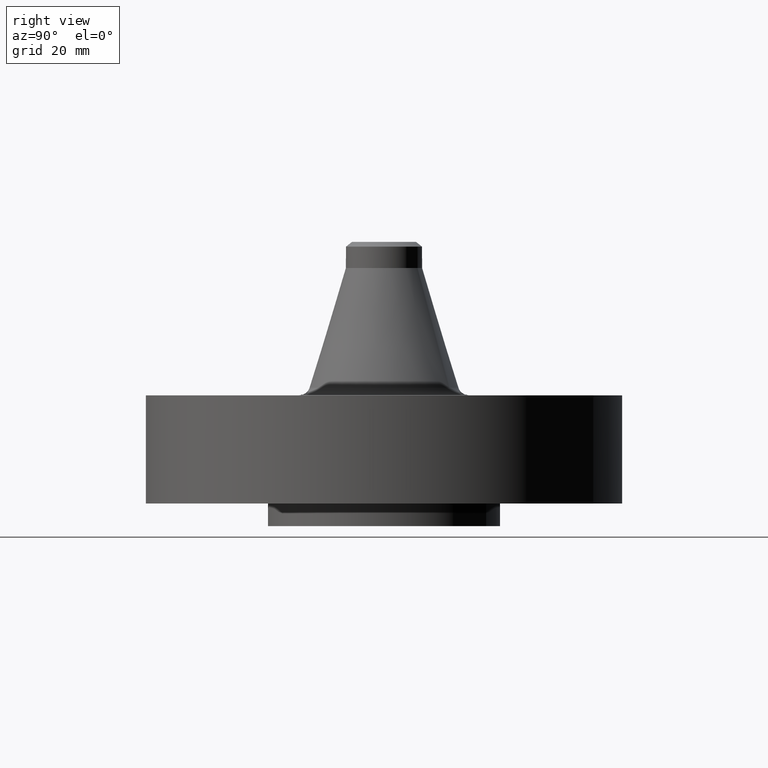
[diagram: clean part render]
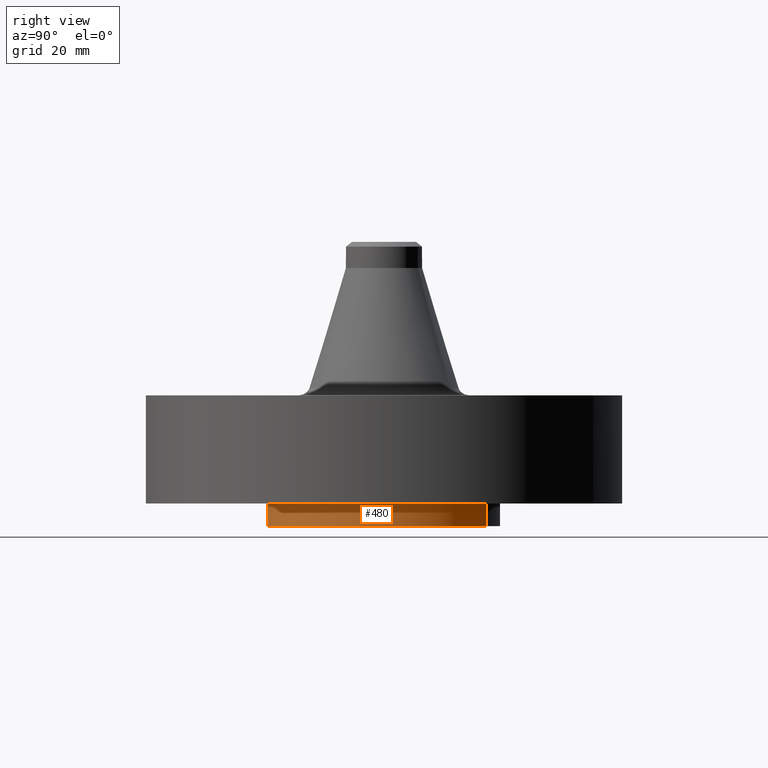
[diagram: same view with one face highlighted and labeled with its STEP entity id]
A machine part, right view. The second image highlights one B-rep face of the part: STEP entity #480.
In plain terms, the highlighted cylindrical surface (partial cylindrical patch) has radius 32.5501 mm, axis along (0, 0, -1).
Its self-contained STEP definition (entity closure, byte-faithful):
#427=AXIS2_PLACEMENT_3D('Cylinder Axis2P3D',#424,#425,#426) ;
#466=AXIS2_PLACEMENT_3D('Circle Axis2P3D',#464,#465,$) ;
#471=AXIS2_PLACEMENT_3D('Circle Axis2P3D',#469,#470,$) ;
#424=CARTESIAN_POINT('Axis2P3D Location',(0.,0.,1.31500000001)) ;
#433=CARTESIAN_POINT('Vertex',(-0.614383827724,-1.12462205307,-0.250000000001)) ;
#435=CARTESIAN_POINT('Vertex',(0.614383827724,1.12462205307,-0.250000000001)) ;
#438=CARTESIAN_POINT('Line Origine',(-0.614383827724,-1.12462205307,-0.125000000001)) ;
#442=CARTESIAN_POINT('Vertex',(-0.614383827724,-1.12462205307,0.)) ;
#449=CARTESIAN_POINT('Vertex',(0.614383827724,1.12462205307,0.)) ;
#452=CARTESIAN_POINT('Line Origine',(0.614383827724,1.12462205307,-0.125000000001)) ;
#464=CARTESIAN_POINT('Axis2P3D Location',(0.,0.,-0.250000000001)) ;
#469=CARTESIAN_POINT('Axis2P3D Location',(0.,0.,0.)) ;
#425=DIRECTION('Axis2P3D Direction',(0.,0.,-0.0393700787402)) ;
#426=DIRECTION('Axis2P3D XDirection',(0.0188750212049,0.0345504945626,0.)) ;
#439=DIRECTION('Vector Direction',(0.,0.,-0.0393700787402)) ;
#453=DIRECTION('Vector Direction',(0.,0.,-0.0393700787402)) ;
#465=DIRECTION('Axis2P3D Direction',(0.,0.,-0.0393700787402)) ;
#470=DIRECTION('Axis2P3D Direction',(0.,0.,-0.0393700787402)) ;
#440=VECTOR('Line Direction',#439,0.0393700787402) ;
#454=VECTOR('Line Direction',#453,0.0393700787402) ;
#475=ORIENTED_EDGE('',*,*,#468,.F.) ;
#476=ORIENTED_EDGE('',*,*,#456,.T.) ;
#477=ORIENTED_EDGE('',*,*,#473,.T.) ;
#478=ORIENTED_EDGE('',*,*,#444,.F.) ;
#480=ADVANCED_FACE('PartBody',(#479),#428,.T.) ;
#467=CIRCLE('generated circle',#466,1.28150000001) ;
#472=CIRCLE('generated circle',#471,1.28150000001) ;
#428=CYLINDRICAL_SURFACE('generated cylinder',#427,1.28150000001) ;
#444=EDGE_CURVE('',#434,#443,#441,.F.) ;
#456=EDGE_CURVE('',#436,#450,#455,.F.) ;
#468=EDGE_CURVE('',#436,#434,#467,.T.) ;
#473=EDGE_CURVE('',#450,#443,#472,.T.) ;
#474=EDGE_LOOP('',(#475,#476,#477,#478)) ;
#479=FACE_OUTER_BOUND('',#474,.T.) ;
#441=LINE('Line',#438,#440) ;
#455=LINE('Line',#452,#454) ;
#434=VERTEX_POINT('',#433) ;
#436=VERTEX_POINT('',#435) ;
#443=VERTEX_POINT('',#442) ;
#450=VERTEX_POINT('',#449) ;